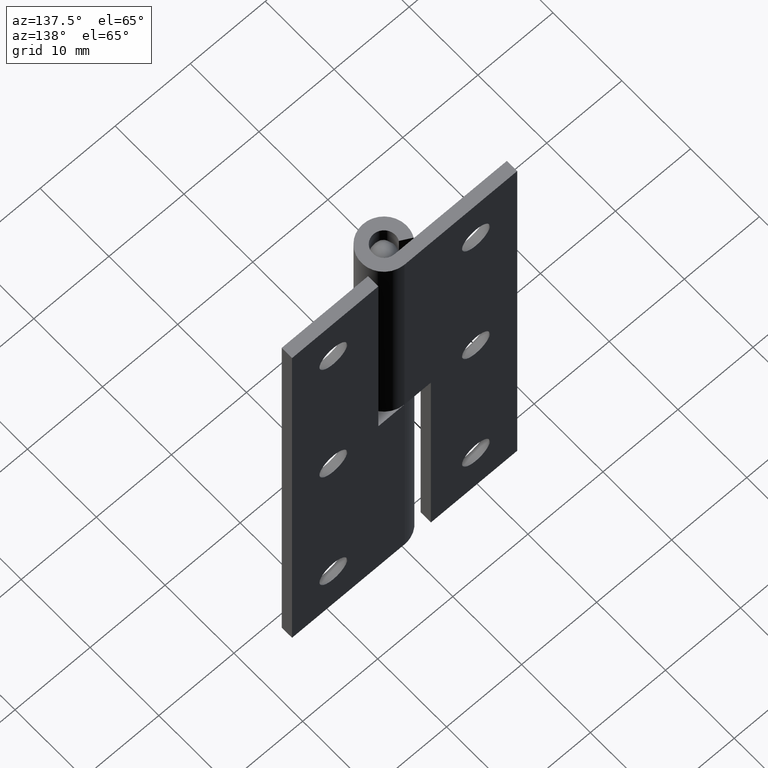
[diagram: clean part render]
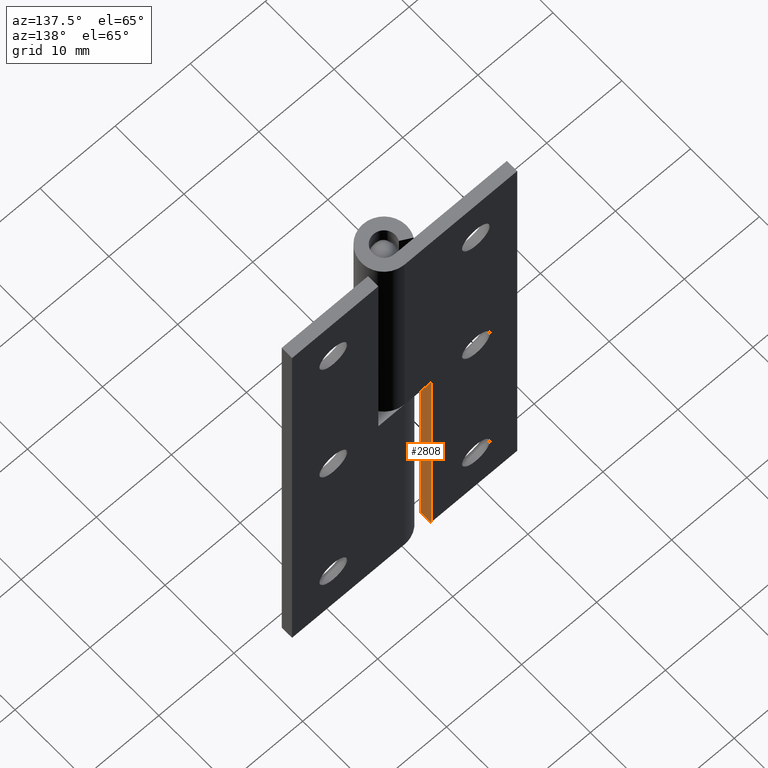
[diagram: same view with one face highlighted and labeled with its STEP entity id]
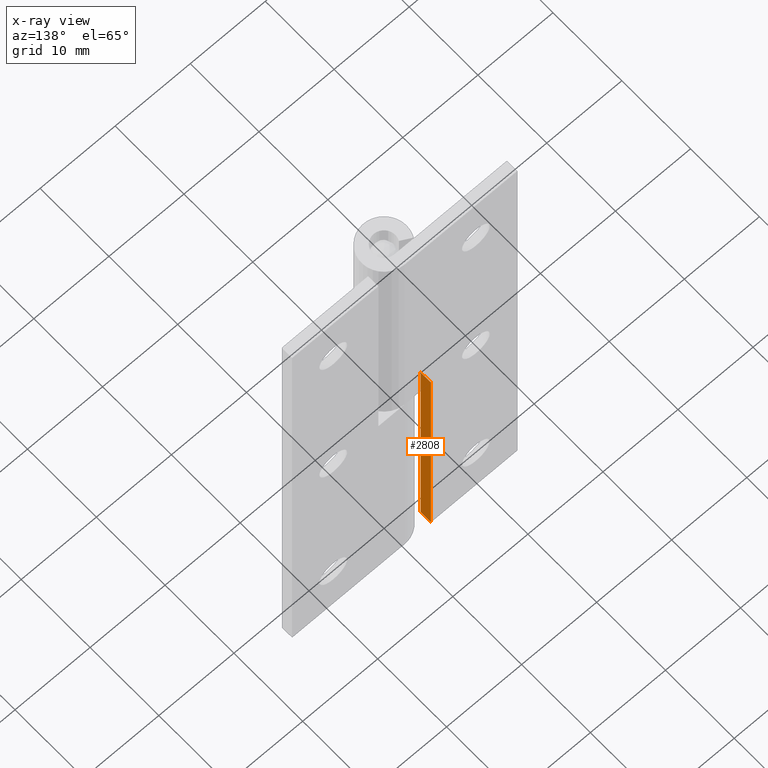
[diagram: x-ray of the same camera — body ghosted, the highlighted face saturated]
A machine part, auxiliary view. The second image highlights one B-rep face of the part: STEP entity #2808.
The next image is the same camera in x-ray: the body ghosted, the highlighted face saturated — about 0% of this face is hidden behind the body in this view.
In plain terms, the highlighted face is a freeform B-spline surface patch.
Its self-contained STEP definition (entity closure, byte-faithful):
#2773=CARTESIAN_POINT('',(-3.500000000000000,1.425075002907234,-1.623374937008694));
#2774=CARTESIAN_POINT('',(-3.500000000000000,1.425075002907234,34.123375808726621));
#2775=CARTESIAN_POINT('',(-3.500000000000000,3.074925037325847,-1.623374937008694));
#2776=CARTESIAN_POINT('',(-3.500000000000000,3.074925037325847,34.123375808726621));
#2777=B_SPLINE_SURFACE_WITH_KNOTS('',1,1,((#2773,#2775),(#2774,#2776)),.UNSPECIFIED.,.F.,.F.,.U.,(2,2),(2,2),(0.0,35.746750745735312),(0.041708334948495,0.958291687403247),.UNSPECIFIED.);
#2778=CARTESIAN_POINT('',(-3.500000000000000,1.500000000000000,0.0));
#2779=VERTEX_POINT('',#2778);
#2780=CARTESIAN_POINT('',(-3.500000000000000,3.0,0.0));
#2781=VERTEX_POINT('',#2780);
#2782=CARTESIAN_POINT('',(-3.500000000000000,1.500000000000000,0.0));
#2783=CARTESIAN_POINT('',(-3.500000000000000,3.0,0.0));
#2784=QUASI_UNIFORM_CURVE('',1,(#2782,#2783),.UNSPECIFIED.,.F.,.U.);
#2785=EDGE_CURVE('',#2779,#2781,#2784,.T.);
#2786=ORIENTED_EDGE('',*,*,#2785,.T.);
#2787=CARTESIAN_POINT('',(-3.500000000000000,3.0,32.500000000000000));
#2788=VERTEX_POINT('',#2787);
#2789=CARTESIAN_POINT('',(-3.500000000000000,3.0,0.0));
#2790=CARTESIAN_POINT('',(-3.500000000000000,3.0,32.500000000000000));
#2791=QUASI_UNIFORM_CURVE('',1,(#2789,#2790),.UNSPECIFIED.,.F.,.U.);
#2792=EDGE_CURVE('',#2781,#2788,#2791,.T.);
#2793=ORIENTED_EDGE('',*,*,#2792,.T.);
#2794=CARTESIAN_POINT('',(-3.500000000000000,1.499999999999946,32.500000000000000));
#2795=VERTEX_POINT('',#2794);
#2796=CARTESIAN_POINT('',(-3.500000000000000,1.499999999999946,32.500000000000000));
#2797=CARTESIAN_POINT('',(-3.500000000000000,3.0,32.500000000000000));
#2798=QUASI_UNIFORM_CURVE('',1,(#2796,#2797),.UNSPECIFIED.,.F.,.U.);
#2799=EDGE_CURVE('',#2795,#2788,#2798,.T.);
#2800=ORIENTED_EDGE('',*,*,#2799,.F.);
#2801=CARTESIAN_POINT('',(-3.500000000000000,1.500000000000000,0.0));
#2802=CARTESIAN_POINT('',(-3.500000000000000,1.499999999999946,32.500000000000000));
#2803=QUASI_UNIFORM_CURVE('',1,(#2801,#2802),.UNSPECIFIED.,.F.,.U.);
#2804=EDGE_CURVE('',#2779,#2795,#2803,.T.);
#2805=ORIENTED_EDGE('',*,*,#2804,.F.);
#2806=EDGE_LOOP('',(#2786,#2793,#2800,#2805));
#2807=FACE_OUTER_BOUND('',#2806,.T.);
#2808=ADVANCED_FACE('',(#2807),#2777,.F.);